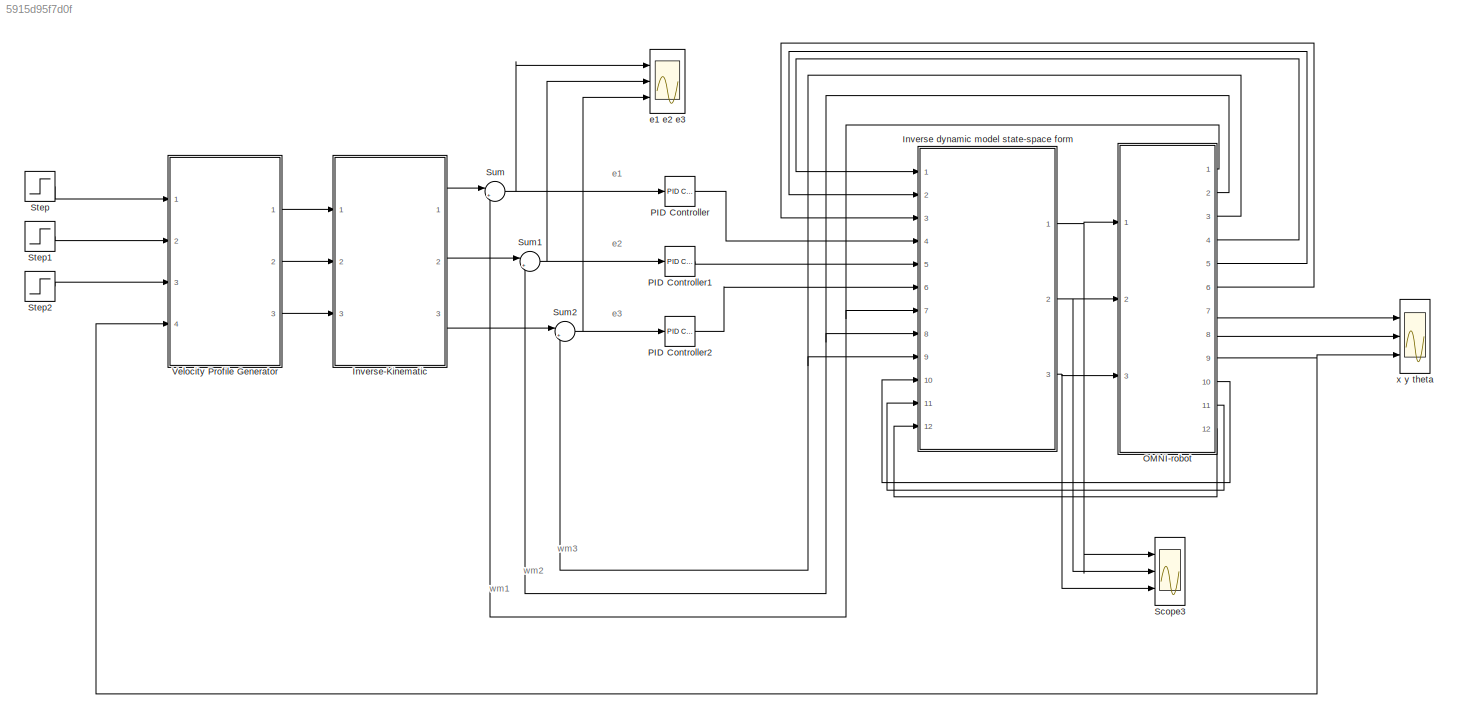
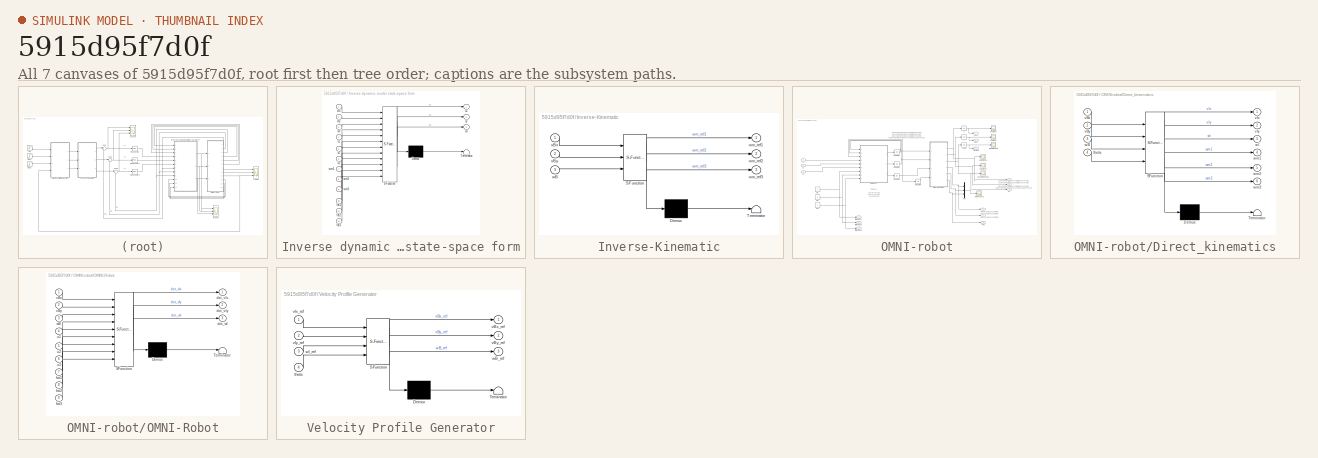
[diagram: thumbnail index - all 7 canvases of the model, root first then tree order]
MODEL slx_5915d95f7d0f
KIND model
CONFIG AbsTol = auto
CONFIG EnableMultiTasking = off
CONFIG FixedStep = 0.01
CONFIG MaxStep = auto
CONFIG MinStep = auto
CONFIG RelTol = 1e-3
CONFIG SampleTimeConstraint = Unconstrained
CONFIG Solver = ode5
CONFIG SolverName = ode5
CONFIG StartTime = 0.0
CONFIG StopTime = 10.0
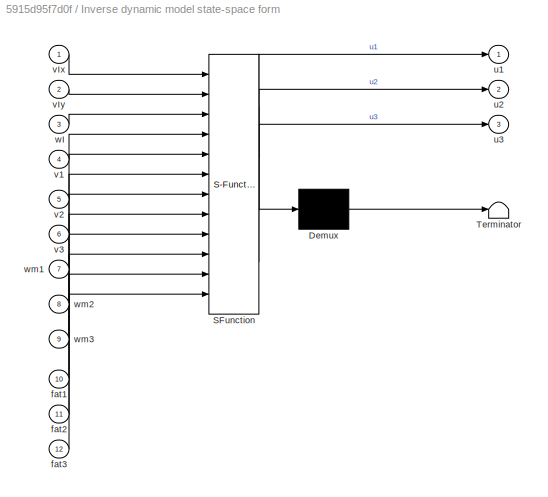
BLOCK [SubSystem] Inverse dynamic model state-space form
  ErrorFcn = Stateflow.Translate.translate
  PermitHierarchicalResolution = ExplicitOnly
  Ports = [12, 3]
  RequestExecContextInheritance = off
  SFBlockType = MATLAB Function
  TreatAsAtomicUnit = on
  Variant = off
BLOCK [Demux] Inverse dynamic model state-space form/ Demux 
  Outputs = 1
  Ports = [1, 1]
BLOCK [S-Function] Inverse dynamic model state-space form/ SFunction 
  EnableBusSupport = on
  FunctionName = sf_sfun
  PortCounts = [12 4]
  Ports = [12, 4]
  SFcnIsStateOwnerBlock = off
  SFunctionDeploymentMode = off
  Tag = Stateflow S-Function ROBOT_model 3
BLOCK [Terminator] Inverse dynamic model state-space form/ Terminator 
BLOCK [Inport] Inverse dynamic model state-space form/fat1
  IconDisplay = Port number
  Port = 10
BLOCK [Inport] Inverse dynamic model state-space form/fat2
  IconDisplay = Port number
  Port = 11
BLOCK [Inport] Inverse dynamic model state-space form/fat3
  IconDisplay = Port number
  Port = 12
BLOCK [Outport] Inverse dynamic model state-space form/u1
  IconDisplay = Port number
BLOCK [Outport] Inverse dynamic model state-space form/u2
  IconDisplay = Port number
  Port = 2
BLOCK [Outport] Inverse dynamic model state-space form/u3
  IconDisplay = Port number
  Port = 3
BLOCK [Inport] Inverse dynamic model state-space form/v1
  IconDisplay = Port number
  Port = 4
BLOCK [Inport] Inverse dynamic model state-space form/v2
  IconDisplay = Port number
  Port = 5
BLOCK [Inport] Inverse dynamic model state-space form/v3
  IconDisplay = Port number
  Port = 6
BLOCK [Inport] Inverse dynamic model state-space form/vIx
  IconDisplay = Port number
BLOCK [Inport] Inverse dynamic model state-space form/vIy
  IconDisplay = Port number
  Port = 2
BLOCK [Inport] Inverse dynamic model state-space form/wI
  IconDisplay = Port number
  Port = 3
BLOCK [Inport] Inverse dynamic model state-space form/wm1
  IconDisplay = Port number
  Port = 7
BLOCK [Inport] Inverse dynamic model state-space form/wm2
  IconDisplay = Port number
  Port = 8
BLOCK [Inport] Inverse dynamic model state-space form/wm3
  IconDisplay = Port number
  Port = 9
BLOCK [SubSystem] Inverse-Kinematic
  ErrorFcn = Stateflow.Translate.translate
  PermitHierarchicalResolution = ExplicitOnly
  Ports = [3, 3]
  RequestExecContextInheritance = off
  SFBlockType = MATLAB Function
  TreatAsAtomicUnit = on
  Variant = off
BLOCK [Demux] Inverse-Kinematic/ Demux 
  Outputs = 1
  Ports = [1, 1]
BLOCK [S-Function] Inverse-Kinematic/ SFunction 
  EnableBusSupport = on
  FunctionName = sf_sfun
  PortCounts = [3 4]
  Ports = [3, 4]
  SFcnIsStateOwnerBlock = off
  SFunctionDeploymentMode = off
  Tag = Stateflow S-Function ROBOT_model 4
BLOCK [Terminator] Inverse-Kinematic/ Terminator 
BLOCK [Inport] Inverse-Kinematic/vBx
  IconDisplay = Port number
BLOCK [Inport] Inverse-Kinematic/vBy
  IconDisplay = Port number
  Port = 2
BLOCK [Inport] Inverse-Kinematic/wB
  IconDisplay = Port number
  Port = 3
BLOCK [Outport] Inverse-Kinematic/wm_ref1
  IconDisplay = Port number
BLOCK [Outport] Inverse-Kinematic/wm_ref2
  IconDisplay = Port number
  Port = 2
BLOCK [Outport] Inverse-Kinematic/wm_ref3
  IconDisplay = Port number
  Port = 3
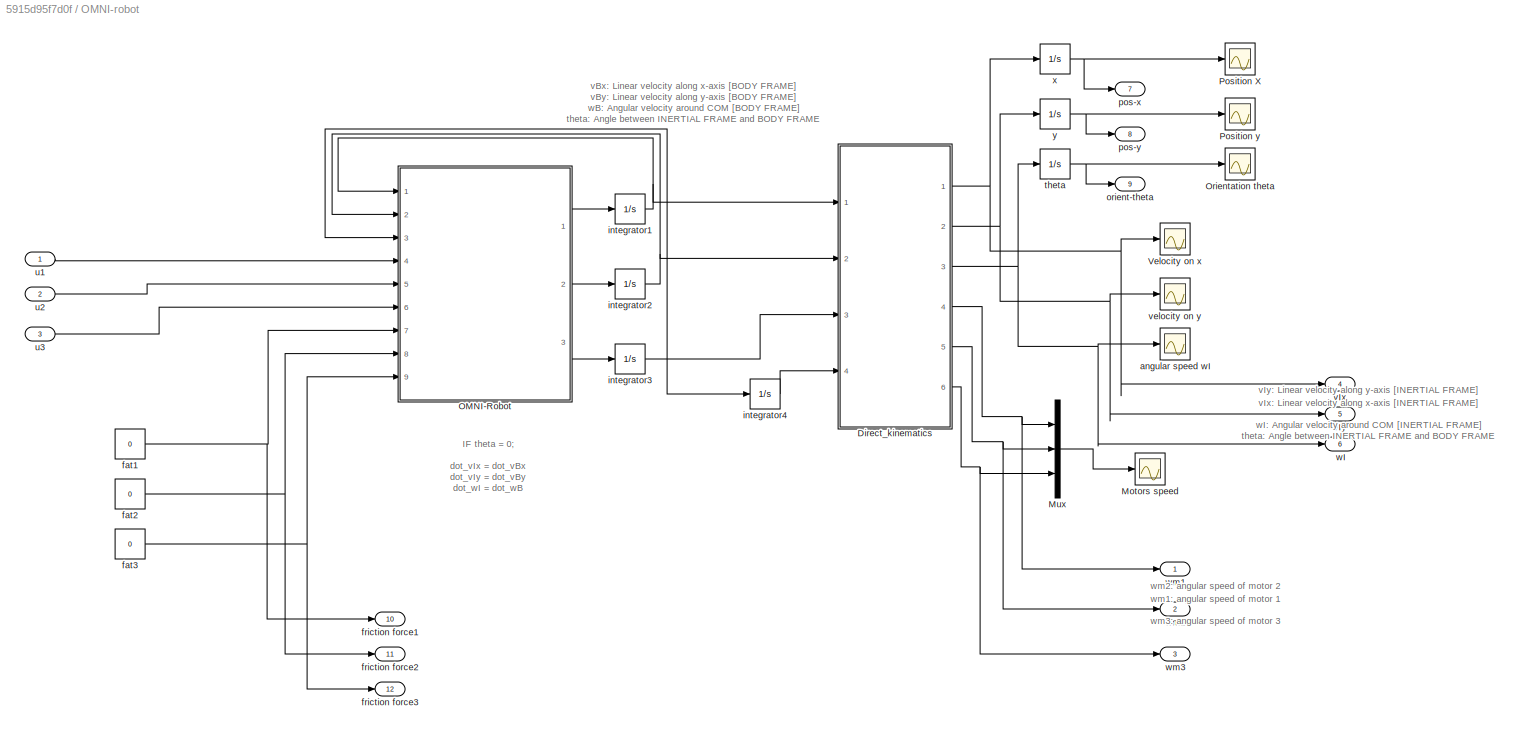
BLOCK [SubSystem] OMNI-robot
  Ports = [3, 12]
  RequestExecContextInheritance = off
  Variant = off
BLOCK [SubSystem] OMNI-robot/Direct_kinematics
  ErrorFcn = Stateflow.Translate.translate
  PermitHierarchicalResolution = ExplicitOnly
  Ports = [4, 6]
  RequestExecContextInheritance = off
  SFBlockType = MATLAB Function
  TreatAsAtomicUnit = on
  Variant = off
BLOCK [Demux] OMNI-robot/Direct_kinematics/ Demux 
  Outputs = 1
  Ports = [1, 1]
BLOCK [S-Function] OMNI-robot/Direct_kinematics/ SFunction 
  EnableBusSupport = on
  FunctionName = sf_sfun
  PortCounts = [4 7]
  Ports = [4, 7]
  SFcnIsStateOwnerBlock = off
  SFunctionDeploymentMode = off
  Tag = Stateflow S-Function ROBOT_model 1
BLOCK [Terminator] OMNI-robot/Direct_kinematics/ Terminator 
BLOCK [Inport] OMNI-robot/Direct_kinematics/theta
  IconDisplay = Port number
  Port = 4
BLOCK [Inport] OMNI-robot/Direct_kinematics/vBx
  IconDisplay = Port number
BLOCK [Inport] OMNI-robot/Direct_kinematics/vBy
  IconDisplay = Port number
  Port = 2
BLOCK [Outport] OMNI-robot/Direct_kinematics/vIx
  IconDisplay = Port number
BLOCK [Outport] OMNI-robot/Direct_kinematics/vIy
  IconDisplay = Port number
  Port = 2
BLOCK [Inport] OMNI-robot/Direct_kinematics/wB
  IconDisplay = Port number
  Port = 3
BLOCK [Outport] OMNI-robot/Direct_kinematics/wI
  IconDisplay = Port number
  Port = 3
BLOCK [Outport] OMNI-robot/Direct_kinematics/wm1
  IconDisplay = Port number
  Port = 4
BLOCK [Outport] OMNI-robot/Direct_kinematics/wm2
  IconDisplay = Port number
  Port = 5
BLOCK [Outport] OMNI-robot/Direct_kinematics/wm3
  IconDisplay = Port number
  Port = 6
BLOCK [Scope] OMNI-robot/Motors speed
  NumInputPorts = 1
  Ports = [1]
  ScopeSpecificationString = Simulink.scopes.TimeScopeBlockCfg('CurrentConfiguration', extmgr.ConfigurationSet(extmgr.Configuration('Core','General UI',true),extmgr.Configuration('Core','Source UI',true),extmgr.Configuration('Sources','WiredSimulink',true,'DataLoggingVariableName','ScopeData6'),extmgr.Configuration('Visuals','Time Domain',true,'SerializedDisplays',{struct('MinYLimReal','-68.91986','MaxYLimReal','41.88188','YL...<+1463ch>
BLOCK [Mux] OMNI-robot/Mux
  DisplayOption = bar
  Inputs = 3
  Ports = [3, 1]
BLOCK [SubSystem] OMNI-robot/OMNI-Robot
  ErrorFcn = Stateflow.Translate.translate
  PermitHierarchicalResolution = ExplicitOnly
  Ports = [9, 3]
  RequestExecContextInheritance = off
  SFBlockType = MATLAB Function
  TreatAsAtomicUnit = on
  Variant = off
BLOCK [Demux] OMNI-robot/OMNI-Robot/ Demux 
  Outputs = 1
  Ports = [1, 1]
BLOCK [S-Function] OMNI-robot/OMNI-Robot/ SFunction 
  EnableBusSupport = on
  FunctionName = sf_sfun
  PortCounts = [9 4]
  Ports = [9, 4]
  SFcnIsStateOwnerBlock = off
  SFunctionDeploymentMode = off
  Tag = Stateflow S-Function ROBOT_model 2
BLOCK [Terminator] OMNI-robot/OMNI-Robot/ Terminator 
BLOCK [Outport] OMNI-robot/OMNI-Robot/dot_vIx
  IconDisplay = Port number
BLOCK [Outport] OMNI-robot/OMNI-Robot/dot_vIy
  IconDisplay = Port number
  Port = 2
BLOCK [Outport] OMNI-robot/OMNI-Robot/dot_wI
  IconDisplay = Port number
  Port = 3
BLOCK [Inport] OMNI-robot/OMNI-Robot/fat1
  IconDisplay = Port number
  Port = 7
BLOCK [Inport] OMNI-robot/OMNI-Robot/fat2
  IconDisplay = Port number
  Port = 8
BLOCK [Inport] OMNI-robot/OMNI-Robot/fat3
  IconDisplay = Port number
  Port = 9
BLOCK [Inport] OMNI-robot/OMNI-Robot/u1
  IconDisplay = Port number
  Port = 4
BLOCK [Inport] OMNI-robot/OMNI-Robot/u2
  IconDisplay = Port number
  Port = 5
BLOCK [Inport] OMNI-robot/OMNI-Robot/u3
  IconDisplay = Port number
  Port = 6
BLOCK [Inport] OMNI-robot/OMNI-Robot/vBx
  IconDisplay = Port number
BLOCK [Inport] OMNI-robot/OMNI-Robot/vBy
  IconDisplay = Port number
  Port = 2
BLOCK [Inport] OMNI-robot/OMNI-Robot/wB
  IconDisplay = Port number
  Port = 3
BLOCK [Scope] OMNI-robot/Orientation theta
  NumInputPorts = 1
  Ports = [1]
  ScopeSpecificationString = Simulink.scopes.TimeScopeBlockCfg('CurrentConfiguration', extmgr.ConfigurationSet(extmgr.Configuration('Core','General UI',true),extmgr.Configuration('Core','Source UI',true),extmgr.Configuration('Sources','WiredSimulink',true,'DataLoggingVariableName','ScopeData2'),extmgr.Configuration('Visuals','Time Domain',true,'SerializedDisplays',{struct('MinYLimReal','-0.0435','MaxYLimReal','0.39149','YLabe...<+1391ch>
BLOCK [Scope] OMNI-robot/Position X
  NumInputPorts = 1
  Ports = [1]
  ScopeSpecificationString = Simulink.scopes.TimeScopeBlockCfg('CurrentConfiguration', extmgr.ConfigurationSet(extmgr.Configuration('Core','General UI',true),extmgr.Configuration('Core','Source UI',true),extmgr.Configuration('Sources','WiredSimulink',true),extmgr.Configuration('Visuals','Time Domain',true,'SerializedDisplays',{struct('MinYLimReal','-0.03548','MaxYLimReal','0.00394','YLabelReal','','MinYLimMag','0.00000','MaxY...<+1350ch>
BLOCK [Scope] OMNI-robot/Position y
  NumInputPorts = 1
  Ports = [1]
  ScopeSpecificationString = Simulink.scopes.TimeScopeBlockCfg('CurrentConfiguration', extmgr.ConfigurationSet(extmgr.Configuration('Core','General UI',true),extmgr.Configuration('Core','Source UI',true),extmgr.Configuration('Sources','WiredSimulink',true,'DataLoggingVariableName','ScopeData1'),extmgr.Configuration('Visuals','Time Domain',true,'SerializedDisplays',{struct('MinYLimReal','-0.05073','MaxYLimReal','0.45657','YLab...<+1360ch>
BLOCK [Scope] OMNI-robot/Velocity on x
  NumInputPorts = 1
  Ports = [1]
  ScopeSpecificationString = Simulink.scopes.TimeScopeBlockCfg('CurrentConfiguration', extmgr.ConfigurationSet(extmgr.Configuration('Core','General UI',true),extmgr.Configuration('Core','Source UI',true),extmgr.Configuration('Sources','WiredSimulink',true,'DataLoggingVariableName','ScopeData3'),extmgr.Configuration('Visuals','Time Domain',true,'SerializedDisplays',{struct('MinYLimReal','-0.01875','MaxYLimReal','0.00208','YLab...<+1380ch>
BLOCK [Scope] OMNI-robot/angular speed wI
  NumInputPorts = 1
  Ports = [1]
  ScopeSpecificationString = Simulink.scopes.TimeScopeBlockCfg('CurrentConfiguration', extmgr.ConfigurationSet(extmgr.Configuration('Core','General UI',true),extmgr.Configuration('Core','Source UI',true),extmgr.Configuration('Sources','WiredSimulink',true,'DataLoggingVariableName','ScopeData5'),extmgr.Configuration('Visuals','Time Domain',true,'SerializedDisplays',{struct('MinYLimReal','-0.03146','MaxYLimReal','0.28316','YLab...<+1379ch>
BLOCK [Constant] OMNI-robot/fat1
  Value = 0
BLOCK [Constant] OMNI-robot/fat2
  Value = 0
BLOCK [Constant] OMNI-robot/fat3
  Value = 0
BLOCK [Outport] OMNI-robot/friction force1
  IconDisplay = Port number
  Port = 10
BLOCK [Outport] OMNI-robot/friction force2
  IconDisplay = Port number
  Port = 11
BLOCK [Outport] OMNI-robot/friction force3
  IconDisplay = Port number
  Port = 12
BLOCK [Integrator] OMNI-robot/integrator1
  Ports = [1, 1]
BLOCK [Integrator] OMNI-robot/integrator2
  Ports = [1, 1]
BLOCK [Integrator] OMNI-robot/integrator3
  Ports = [1, 1]
BLOCK [Integrator] OMNI-robot/integrator4
  Ports = [1, 1]
BLOCK [Outport] OMNI-robot/orient-theta
  IconDisplay = Port number
  Port = 9
BLOCK [Outport] OMNI-robot/pos-x
  IconDisplay = Port number
  Port = 7
BLOCK [Outport] OMNI-robot/pos-y
  IconDisplay = Port number
  Port = 8
BLOCK [Integrator] OMNI-robot/theta
  Ports = [1, 1]
BLOCK [Inport] OMNI-robot/u1
  IconDisplay = Port number
BLOCK [Inport] OMNI-robot/u2
  IconDisplay = Port number
  Port = 2
BLOCK [Inport] OMNI-robot/u3
  IconDisplay = Port number
  Port = 3
BLOCK [Outport] OMNI-robot/vIx
  IconDisplay = Port number
  Port = 4
BLOCK [Outport] OMNI-robot/vIy
  IconDisplay = Port number
  Port = 5
BLOCK [Scope] OMNI-robot/velocity on y
  NumInputPorts = 1
  Ports = [1]
  ScopeSpecificationString = Simulink.scopes.TimeScopeBlockCfg('CurrentConfiguration', extmgr.ConfigurationSet(extmgr.Configuration('Core','General UI',true),extmgr.Configuration('Core','Source UI',true),extmgr.Configuration('Sources','WiredSimulink',true,'DataLoggingVariableName','ScopeData4'),extmgr.Configuration('Visuals','Time Domain',true,'SerializedDisplays',{struct('MinYLimReal','-0.03371','MaxYLimReal','0.30337','YLab...<+1380ch>
BLOCK [Outport] OMNI-robot/wI
  IconDisplay = Port number
  Port = 6
BLOCK [Outport] OMNI-robot/wm1
  IconDisplay = Port number
BLOCK [Outport] OMNI-robot/wm2
  IconDisplay = Port number
  Port = 2
BLOCK [Outport] OMNI-robot/wm3
  IconDisplay = Port number
  Port = 3
BLOCK [Integrator] OMNI-robot/x
  Ports = [1, 1]
BLOCK [Integrator] OMNI-robot/y
  Ports = [1, 1]
BLOCK [Reference] PID Controller  REF=simulink_need_slupdate/PID Controller
  Ports = [1, 1]
  SourceBlock = simulink_need_slupdate/PID Controller
  SourceType = PID Controller
BLOCK [Reference] PID Controller1  REF=simulink_need_slupdate/PID Controller
  Ports = [1, 1]
  SourceBlock = simulink_need_slupdate/PID Controller
  SourceType = PID Controller
BLOCK [Reference] PID Controller2  REF=simulink_need_slupdate/PID Controller
  Ports = [1, 1]
  SourceBlock = simulink_need_slupdate/PID Controller
  SourceType = PID Controller
BLOCK [Scope] Scope3
  NumInputPorts = 3
  Ports = [3]
  ScopeSpecificationString = Simulink.scopes.TimeScopeBlockCfg('CurrentConfiguration', extmgr.ConfigurationSet(extmgr.Configuration('Core','General UI',true),extmgr.Configuration('Core','Source UI',true),extmgr.Configuration('Sources','WiredSimulink',true,'DataLoggingVariableName','ScopeData4'),extmgr.Configuration('Visuals','Time Domain',true,'SerializedDisplays',{struct('MinYLimReal','-0.13959','MaxYLimReal','1.25629','YLab...<+2848ch>
BLOCK [Step] Step
  SampleTime = 0
BLOCK [Step] Step1
  After = 0
  SampleTime = 0
BLOCK [Step] Step2
  After = 0
  SampleTime = 0
BLOCK [Sum] Sum
  IconShape = round
  InputSameDT = off
  Inputs = |+-
  OutDataTypeStr = Inherit: Inherit via internal rule
  Ports = [2, 1]
  SaturateOnIntegerOverflow = off
BLOCK [Sum] Sum1
  IconShape = round
  InputSameDT = off
  Inputs = |+-
  OutDataTypeStr = Inherit: Inherit via internal rule
  Ports = [2, 1]
  SaturateOnIntegerOverflow = off
BLOCK [Sum] Sum2
  IconShape = round
  InputSameDT = off
  Inputs = |+-
  OutDataTypeStr = Inherit: Inherit via internal rule
  Ports = [2, 1]
  SaturateOnIntegerOverflow = off
BLOCK [SubSystem] Velocity Profile Generator
  ErrorFcn = Stateflow.Translate.translate
  PermitHierarchicalResolution = ExplicitOnly
  Ports = [4, 3]
  RequestExecContextInheritance = off
  SFBlockType = MATLAB Function
  TreatAsAtomicUnit = on
  Variant = off
BLOCK [Demux] Velocity Profile Generator/ Demux 
  Outputs = 1
  Ports = [1, 1]
BLOCK [S-Function] Velocity Profile Generator/ SFunction 
  EnableBusSupport = on
  FunctionName = sf_sfun
  PortCounts = [4 4]
  Ports = [4, 4]
  SFcnIsStateOwnerBlock = off
  SFunctionDeploymentMode = off
  Tag = Stateflow S-Function ROBOT_model 5
BLOCK [Terminator] Velocity Profile Generator/ Terminator 
BLOCK [Inport] Velocity Profile Generator/theta
  IconDisplay = Port number
  Port = 4
BLOCK [Outport] Velocity Profile Generator/vBx_ref
  IconDisplay = Port number
BLOCK [Outport] Velocity Profile Generator/vBy_ref
  IconDisplay = Port number
  Port = 2
BLOCK [Inport] Velocity Profile Generator/vIx_ref
  IconDisplay = Port number
BLOCK [Inport] Velocity Profile Generator/vIy_ref
  IconDisplay = Port number
  Port = 2
BLOCK [Outport] Velocity Profile Generator/wB_ref
  IconDisplay = Port number
  Port = 3
BLOCK [Inport] Velocity Profile Generator/wI_ref
  IconDisplay = Port number
  Port = 3
BLOCK [Scope] e1 e2 e3
  NumInputPorts = 3
  Ports = [3]
  ScopeSpecificationString = Simulink.scopes.TimeScopeBlockCfg('CurrentConfiguration', extmgr.ConfigurationSet(extmgr.Configuration('Core','General UI',true),extmgr.Configuration('Core','Source UI',true),extmgr.Configuration('Sources','WiredSimulink',true,'DataLoggingVariableName','ScopeData1'),extmgr.Configuration('Visuals','Time Domain',true,'SerializedDisplays',{struct('MinYLimReal','-231.79366','MaxYLimReal','231.79366','...<+1439ch>
BLOCK [Scope] x y theta
  NumInputPorts = 3
  Ports = [3]
  ScopeSpecificationString = Simulink.scopes.TimeScopeBlockCfg('CurrentConfiguration', extmgr.ConfigurationSet(extmgr.Configuration('Core','General UI',true),extmgr.Configuration('Core','Source UI',true),extmgr.Configuration('Sources','WiredSimulink',true,'DataLoggingVariableName','ScopeData6'),extmgr.Configuration('Visuals','Time Domain',true,'SerializedDisplays',{struct('MinYLimReal','-1','MaxYLimReal','20','YLabelReal','',...<+2732ch>
ANNOTATION (root): e1
ANNOTATION (root): e2
ANNOTATION (root): e3
ANNOTATION (root): wm1
ANNOTATION (root): wm2
ANNOTATION (root): wm3
ANNOTATION OMNI-robot: IF theta = 0; dot_vIx = dot_vBx dot_vIy = dot_vBy dot_wI = dot_wB
ANNOTATION OMNI-robot: vBx: Linear velocity along x-axis [BODY FRAME] vBy: Linear velocity along y-axis [BODY FRAME] wB: Angular velocity around COM [BODY FRAME] theta: Angle between INERTIAL FRAME and BODY FRAME
ANNOTATION OMNI-robot: vIx: Linear velocity along x-axis [INERTIAL FRAME] vIy: Linear velocity along y-axis [INERTIAL FRAME] wI: Angular velocity around COM [INERTIAL FRAME] theta: Angle between INERTIAL FRAME and BODY FRAME
ANNOTATION OMNI-robot: wm1: angular speed of motor 1 wm2: angular speed of motor 2 wm3: angular speed of motor 3
NET Inverse dynamic model state-space form:1 -> OMNI-robot:1, Scope3:1
NET Inverse dynamic model state-space form:2 -> OMNI-robot:2, Scope3:2
NET Inverse dynamic model state-space form:3 -> OMNI-robot:3, Scope3:3
LINE Inverse-Kinematic:1 -> Sum:1
LINE Inverse-Kinematic:2 -> Sum1:1
LINE Inverse-Kinematic:3 -> Sum2:1
NET OMNI-robot/Direct_kinematics:1 -> OMNI-robot/Velocity on x:1, OMNI-robot/vIx:1, OMNI-robot/x:1
NET OMNI-robot/Direct_kinematics:2 -> OMNI-robot/vIy:1, OMNI-robot/velocity on y:1, OMNI-robot/y:1
NET OMNI-robot/Direct_kinematics:3 -> OMNI-robot/angular speed wI:1, OMNI-robot/theta:1, OMNI-robot/wI:1
NET OMNI-robot/Direct_kinematics:4 -> OMNI-robot/Mux:1, OMNI-robot/wm1:1
NET OMNI-robot/Direct_kinematics:5 -> OMNI-robot/Mux:2, OMNI-robot/wm2:1
NET OMNI-robot/Direct_kinematics:6 -> OMNI-robot/Mux:3, OMNI-robot/wm3:1
LINE OMNI-robot/Mux:1 -> OMNI-robot/Motors speed:1
LINE OMNI-robot/OMNI-Robot:1 -> OMNI-robot/integrator1:1
LINE OMNI-robot/OMNI-Robot:2 -> OMNI-robot/integrator2:1
LINE OMNI-robot/OMNI-Robot:3 -> OMNI-robot/integrator3:1
NET OMNI-robot/fat1:1 -> OMNI-robot/OMNI-Robot:7, OMNI-robot/friction force1:1
NET OMNI-robot/fat2:1 -> OMNI-robot/OMNI-Robot:8, OMNI-robot/friction force2:1
NET OMNI-robot/fat3:1 -> OMNI-robot/OMNI-Robot:9, OMNI-robot/friction force3:1
NET OMNI-robot/integrator1:1 -> OMNI-robot/Direct_kinematics:1, OMNI-robot/OMNI-Robot:1
NET OMNI-robot/integrator2:1 -> OMNI-robot/Direct_kinematics:2, OMNI-robot/OMNI-Robot:2
NET OMNI-robot/integrator3:1 -> OMNI-robot/Direct_kinematics:3, OMNI-robot/OMNI-Robot:3, OMNI-robot/integrator4:1
LINE OMNI-robot/integrator4:1 -> OMNI-robot/Direct_kinematics:4
NET OMNI-robot/theta:1 -> OMNI-robot/Orientation theta:1, OMNI-robot/orient-theta:1
LINE OMNI-robot/u1:1 -> OMNI-robot/OMNI-Robot:4
LINE OMNI-robot/u2:1 -> OMNI-robot/OMNI-Robot:5
LINE OMNI-robot/u3:1 -> OMNI-robot/OMNI-Robot:6
NET OMNI-robot/x:1 -> OMNI-robot/Position X:1, OMNI-robot/pos-x:1
NET OMNI-robot/y:1 -> OMNI-robot/Position y:1, OMNI-robot/pos-y:1
NET OMNI-robot:1 -> Inverse dynamic model state-space form:7, Sum:2
LINE OMNI-robot:10 -> Inverse dynamic model state-space form:10
LINE OMNI-robot:11 -> Inverse dynamic model state-space form:11
LINE OMNI-robot:12 -> Inverse dynamic model state-space form:12
NET OMNI-robot:2 -> Inverse dynamic model state-space form:8, Sum1:2
NET OMNI-robot:3 -> Inverse dynamic model state-space form:9, Sum2:2
LINE OMNI-robot:4 -> Inverse dynamic model state-space form:1
LINE OMNI-robot:5 -> Inverse dynamic model state-space form:2
LINE OMNI-robot:6 -> Inverse dynamic model state-space form:3
LINE OMNI-robot:7 -> x y theta:1
LINE OMNI-robot:8 -> x y theta:2
NET OMNI-robot:9 -> Velocity Profile Generator:4, x y theta:3
LINE PID Controller1:1 -> Inverse dynamic model state-space form:5
LINE PID Controller2:1 -> Inverse dynamic model state-space form:6
LINE PID Controller:1 -> Inverse dynamic model state-space form:4
LINE Step1:1 -> Velocity Profile Generator:2
LINE Step2:1 -> Velocity Profile Generator:3
LINE Step:1 -> Velocity Profile Generator:1
NET Sum1:1 -> PID Controller1:1, e1 e2 e3:2
NET Sum2:1 -> PID Controller2:1, e1 e2 e3:3
NET Sum:1 -> PID Controller:1, e1 e2 e3:1
LINE Velocity Profile Generator:1 -> Inverse-Kinematic:1
LINE Velocity Profile Generator:2 -> Inverse-Kinematic:2
LINE Velocity Profile Generator:3 -> Inverse-Kinematic:3
note: NET lines group one-source signal fan-out (src -> all destinations, sorted); 1:1 wires keep LINE
CHART OMNI-robot/Direct_kinematics states=1 transitions=1
  STATE_LABEL 'eML_blk_kernel()'
  STATE_LABEL 'SCRIPT:\n\nfunction [vIx,vIy,wI,wm1,wm2,wm3] = Direct_KIN(vBx,vBy,wB,theta)\n\n%%%%% INPUTS %%%%%\n% vBx    =  Linear acceleration along x-axis    [BODY-FRAME]\n% vBy    =  Linear acceleration along y-axis    [BODY-FRAME]\n%  wB    =  Angular acceleration around z-axis  [BODY-FRAME]\n% theta  =  angle between Inertial frame and Body frame \n\n%%%%% OUTPUTS %%%%\n% vIx     =   linear velocity along x-directio...<+1670ch>'
CHART OMNI-robot/OMNI-Robot states=1 transitions=1
  STATE_LABEL 'eML_blk_kernel()'
  STATE_LABEL 'SCRIPT:\nfunction [dot_vIx,dot_vIy,dot_wI] = Robot_model(vBx,vBy,wB,u1,u2,u3,fat1,fat2,fat3)\n\n% fat1, fat2, and fat3 are the friction forces, for now we will consider an\n% ideal case with NO FRICTIONS.\n\n%%%%% INPUTS %%%%%\n% vBx    =   linear velocity along x-direction  [BODY-FRAME]\n% vBy    =   linear velocity along y-direction  [BODY-FRAME]\n% wB     =   angular velocity around COM        [BODY-FRA...<+2583ch>'
CHART Inverse dynamic model
state-space form states=1 transitions=1
  STATE_LABEL 'eML_blk_kernel()'
  STATE_LABEL 'SCRIPT:\nfunction [u1,u2,u3] = Linearization(vIx,vIy,wI,v1,v2,v3,wm1,wm2,wm3,fat1,fat2,fat3)\n\n% fat1, fat2, and fat3 are the friction forces, for now we will consider an\n% ideal case with NO FRICTIONS.\n\nN=19; % Reduction Ratio of the motors (adimensional)\neta=0.83; % Mechanical coupling efficiency (adimensional)\nkt=0.0059; % Torque constant [Nm/A]\nkem=0.0059;  % EMF constanht [Vs/rad]\nJm=3.88e-7; %...<+1686ch>'
CHART Inverse-Kinematic states=1 transitions=1
  STATE_LABEL 'eML_blk_kernel()'
  STATE_LABEL 'SCRIPT:\nfunction [wm_ref1,wm_ref2,wm_ref3] = Inv_KIN(vBx,vBy,wB)\n\n%%%%% INPUTS %%%%%\n% vBx    =  Linear acceleration along x-axis    [BODY-FRAME]\n% vBy    =  Linear acceleration along y-axis    [BODY-FRAME]\n%  wB    =  Angular acceleration around z-axis  [BODY-FRAME]\n%%%%% OUTPUTS %%%%\n% Wm1     =   Angular speed of motor 1\n% Wm2     =   Angular speed of motor 2\n% Wm3     =   Angular speed of moto...<+832ch>'
CHART Velocity Profile Generator states=1 transitions=1
  STATE_LABEL 'eML_blk_kernel()'
  STATE_LABEL 'SCRIPT:\nfunction [vBx_ref,vBy_ref,wB_ref] = Vel_prof(vIx_ref,vIy_ref,wI_ref,theta)\n%%%%% INPUTS %%%%%\n% vBx    =  Linear acceleration along x-axis    [BODY-FRAME]\n% vBy    =  Linear acceleration along y-axis    [BODY-FRAME]\n%  wB    =  Angular acceleration around z-axis  [BODY-FRAME]\n% theta  =  angle between Inertial frame and Body frame \n\n%%%%% OUTPUTS %%%%\n% vIx     =   linear velocity along x-...<+1244ch>'
